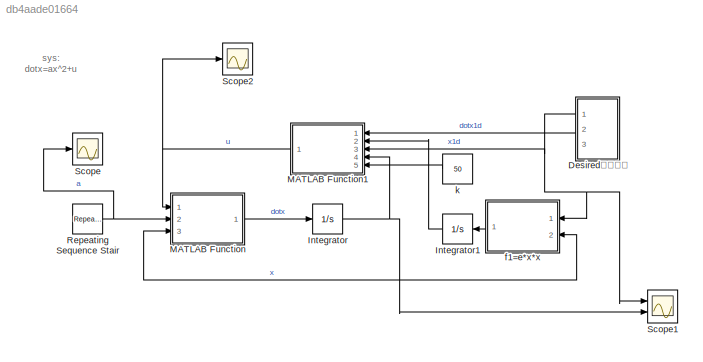
MODEL slx_db4aade01664
KIND model
CONFIG AbsTol = auto
CONFIG EnableMultiTasking = off
CONFIG FixedStep = auto
CONFIG MaxStep = auto
CONFIG MinStep = auto
CONFIG RelTol = 1e-3
CONFIG SampleTimeConstraint = Unconstrained
CONFIG SolverName = VariableStepAuto
CONFIG StartTime = 0.0
CONFIG StopTime = 30
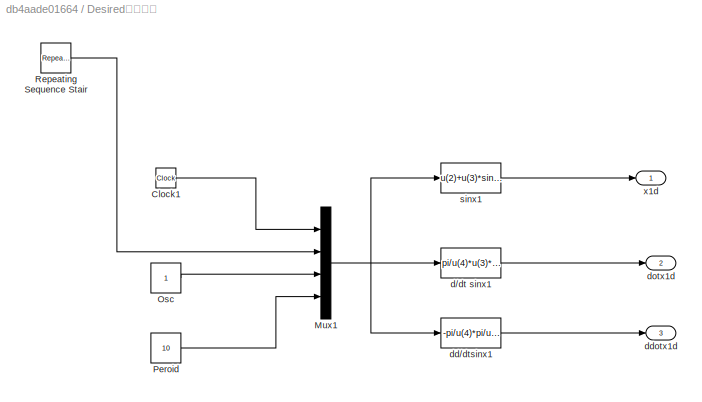
BLOCK [SubSystem] Desired设定轨迹
  Ports = [0, 3]
  RequestExecContextInheritance = off
BLOCK [Clock] Desired设定轨迹/Clock1
  Decimation = 100
BLOCK [Mux] Desired设定轨迹/Mux1
  DisplayOption = bar
  Ports = [4, 1]
BLOCK [Constant] Desired设定轨迹/Osc
BLOCK [Constant] Desired设定轨迹/Peroid
  Value = 10
BLOCK [Reference] Desired设定轨迹/Repeating Sequence Stair  REF=simulink/Sources/Repeating
Sequence
Stair
  Ports = [0, 1]
  SourceBlock = simulink/Sources/Repeating\nSequence\nStair
  SourceProductBaseCode = SL
  SourceType = Repeating Sequence Stair
BLOCK [Fcn] Desired设定轨迹/d//dt sinx1
  Expr = pi/u(4)*u(3)*cos(u(1)*pi/u(4))
BLOCK [Fcn] Desired设定轨迹/dd//dtsinx1
  Expr = -pi/u(4)*pi/u(4)*u(3)*sin(u(1)*pi/u(4))
BLOCK [Outport] Desired设定轨迹/ddotx1d
  Port = 3
BLOCK [Outport] Desired设定轨迹/dotx1d
  Port = 2
BLOCK [Fcn] Desired设定轨迹/sinx1
  Expr = u(2)+u(3)*sin(u(1)*pi/u(4))
BLOCK [Outport] Desired设定轨迹/x1d
BLOCK [Integrator] Integrator
  Ports = [1, 1]
BLOCK [Integrator] Integrator1
  Ports = [1, 1]
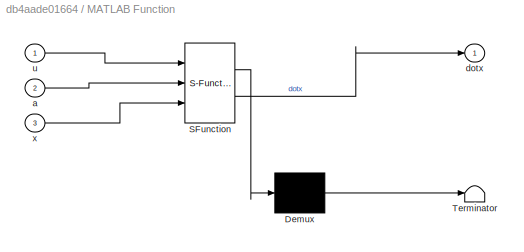
BLOCK [SubSystem] MATLAB Function
  ErrorFcn = Stateflow.Translate.translate
  PermitHierarchicalResolution = ExplicitOnly
  Ports = [3, 1]
  RequestExecContextInheritance = off
  SFBlockType = MATLAB Function
  TreatAsAtomicUnit = on
BLOCK [Demux] MATLAB Function/ Demux 
  Outputs = 1
  Ports = [1, 1]
BLOCK [S-Function] MATLAB Function/ SFunction 
  EnableBusSupport = on
  FunctionName = sf_sfun
  PortCounts = [3 2]
  Ports = [3, 2]
  SFcnIsStateOwnerBlock = off
  SFunctionDeploymentMode = off
  Tag = Stateflow S-Function 2
BLOCK [Terminator] MATLAB Function/ Terminator 
BLOCK [Inport] MATLAB Function/a
  Port = 2
BLOCK [Outport] MATLAB Function/dotx
BLOCK [Inport] MATLAB Function/u
BLOCK [Inport] MATLAB Function/x
  Port = 3
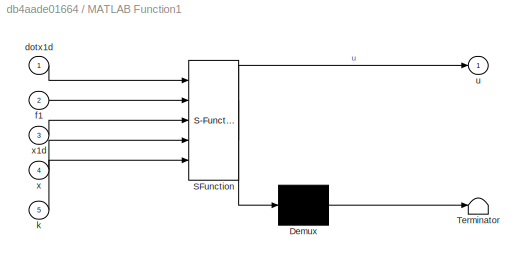
BLOCK [SubSystem] MATLAB Function1
  ErrorFcn = Stateflow.Translate.translate
  PermitHierarchicalResolution = ExplicitOnly
  Ports = [5, 1]
  RequestExecContextInheritance = off
  SFBlockType = MATLAB Function
  TreatAsAtomicUnit = on
BLOCK [Demux] MATLAB Function1/ Demux 
  Outputs = 1
  Ports = [1, 1]
BLOCK [S-Function] MATLAB Function1/ SFunction 
  EnableBusSupport = on
  FunctionName = sf_sfun
  PortCounts = [5 2]
  Ports = [5, 2]
  SFcnIsStateOwnerBlock = off
  SFunctionDeploymentMode = off
  Tag = Stateflow S-Function 1
BLOCK [Terminator] MATLAB Function1/ Terminator 
BLOCK [Inport] MATLAB Function1/dotx1d
BLOCK [Inport] MATLAB Function1/f1
  Port = 2
BLOCK [Inport] MATLAB Function1/k
  Port = 5
BLOCK [Outport] MATLAB Function1/u
BLOCK [Inport] MATLAB Function1/x
  Port = 4
BLOCK [Inport] MATLAB Function1/x1d
  Port = 3
BLOCK [Reference] Repeating Sequence Stair  REF=simulink/Sources/Repeating
Sequence
Stair
  Ports = [0, 1]
  SourceBlock = simulink/Sources/Repeating\nSequence\nStair
  SourceProductBaseCode = SL
  SourceType = Repeating Sequence Stair
BLOCK [Scope] Scope
  Floating = off
  NumInputPorts = 1
  Ports = [1]
  ScopeSpecificationString = Simulink.scopes.TimeScopeBlockCfg('CurrentConfiguration', extmgr.ConfigurationSet(extmgr.Configuration('Core','General UI',true),extmgr.Configuration('Core','Source UI',true),extmgr.Configuration('Sources','WiredSimulink',true),extmgr.Configuration('Visuals','Time Domain',true,'SerializedDisplays',{struct('MinYLimReal','0.75','MaxYLimReal','3.25','YLabelReal','','MinYLimMag','0.75','MaxYLimMag','3...<+1295ch>
BLOCK [Scope] Scope1
  Floating = off
  NumInputPorts = 2
  Ports = [2]
  ScopeSpecificationString = Simulink.scopes.TimeScopeBlockCfg('CurrentConfiguration', extmgr.ConfigurationSet(extmgr.Configuration('Core','General UI',true),extmgr.Configuration('Core','Source UI',true),extmgr.Configuration('Sources','WiredSimulink',true,'DataLoggingVariableName','ScopeData1'),extmgr.Configuration('Visuals','Time Domain',true,'SerializedDisplays',{struct('MinYLimReal','-0.26577','MaxYLimReal','2.38544','YLab...<+1399ch>
BLOCK [Scope] Scope2
  Floating = off
  NumInputPorts = 1
  Ports = [1]
  ScopeSpecificationString = Simulink.scopes.TimeScopeBlockCfg('CurrentConfiguration', extmgr.ConfigurationSet(extmgr.Configuration('Core','General UI',true),extmgr.Configuration('Core','Source UI',true),extmgr.Configuration('Sources','WiredSimulink',true,'DataLoggingVariableName','ScopeData2'),extmgr.Configuration('Visuals','Time Domain',true,'SerializedDisplays',{struct('MinYLimReal','-21.2308','MaxYLimReal','58.2636','YLab...<+1360ch>
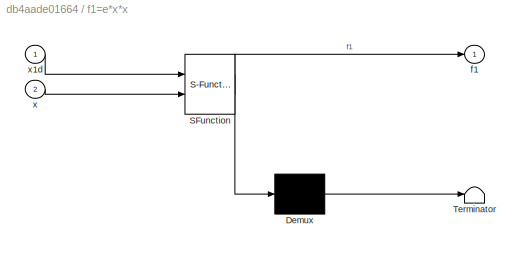
BLOCK [SubSystem] f1=e*x*x
  ErrorFcn = Stateflow.Translate.translate
  PermitHierarchicalResolution = ExplicitOnly
  Ports = [2, 1]
  RequestExecContextInheritance = off
  SFBlockType = MATLAB Function
  TreatAsAtomicUnit = on
BLOCK [Demux] f1=e*x*x/ Demux 
  Outputs = 1
  Ports = [1, 1]
BLOCK [S-Function] f1=e*x*x/ SFunction 
  EnableBusSupport = on
  FunctionName = sf_sfun
  PortCounts = [2 2]
  Ports = [2, 2]
  SFcnIsStateOwnerBlock = off
  SFunctionDeploymentMode = off
  Tag = Stateflow S-Function 3
BLOCK [Terminator] f1=e*x*x/ Terminator 
BLOCK [Outport] f1=e*x*x/f1
BLOCK [Inport] f1=e*x*x/x
  Port = 2
BLOCK [Inport] f1=e*x*x/x1d
BLOCK [Constant] k
  Value = 50
ANNOTATION (root): sys: dotx=ax^2+u
LINE Desired设定轨迹/Clock1:1 -> Desired设定轨迹/Mux1:1
NET Desired设定轨迹/Mux1:1 -> Desired设定轨迹/d//dt sinx1:1, Desired设定轨迹/dd//dtsinx1:1, Desired设定轨迹/sinx1:1
LINE Desired设定轨迹/Osc:1 -> Desired设定轨迹/Mux1:3
LINE Desired设定轨迹/Peroid:1 -> Desired设定轨迹/Mux1:4
LINE Desired设定轨迹/Repeating Sequence Stair:1 -> Desired设定轨迹/Mux1:2
LINE Desired设定轨迹/d//dt sinx1:1 -> Desired设定轨迹/dotx1d:1
LINE Desired设定轨迹/dd//dtsinx1:1 -> Desired设定轨迹/ddotx1d:1
LINE Desired设定轨迹/sinx1:1 -> Desired设定轨迹/x1d:1
NET Desired设定轨迹:1 -> MATLAB Function1:3, Scope1:1, f1=e*x*x:1
LINE Desired设定轨迹:2 -> MATLAB Function1:1
LINE Integrator1:1 -> MATLAB Function1:2
NET Integrator:1 -> MATLAB Function1:4, MATLAB Function:3, Scope1:2, f1=e*x*x:2
NET MATLAB Function1:1 -> MATLAB Function:1, Scope2:1
LINE MATLAB Function:1 -> Integrator:1
NET Repeating Sequence Stair:1 -> MATLAB Function:2, Scope:1
LINE f1=e*x*x:1 -> Integrator1:1
LINE k:1 -> MATLAB Function1:5
note: NET lines group one-source signal fan-out (src -> all destinations, sorted); 1:1 wires keep LINE
CHART MATLAB Function1 states=1 transitions=1
  STATE_LABEL 'eML_blk_kernel()'
  STATE_LABEL 'SCRIPT:\nfunction u = fcn(dotx1d,f1,x1d,x,k)\ne=x1d-x\nu=dotx1d+x*x*f1+k*e\n'
CHART MATLAB Function states=1 transitions=1
  STATE_LABEL 'eML_blk_kernel()'
  STATE_LABEL 'SCRIPT:\nfunction dotx = fcn(u,a,x)\n\ndotx=a*x*x+u\n'
CHART f1=e*x*x states=1 transitions=1
  STATE_LABEL 'eML_blk_kernel()'
  STATE_LABEL 'SCRIPT:\nfunction f1 = fcn(x1d,x)\ne=x1d-x\nf1=e*x*x\n'
CHART  states=0 transitions=0
CHART  states=0 transitions=0
CHART  states=0 transitions=0
